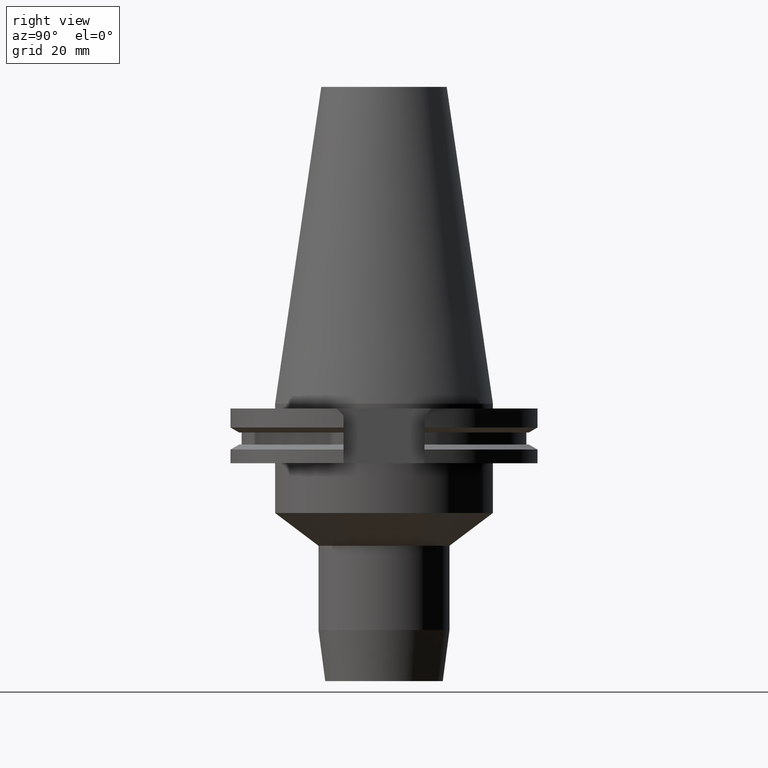
[diagram: clean part render]
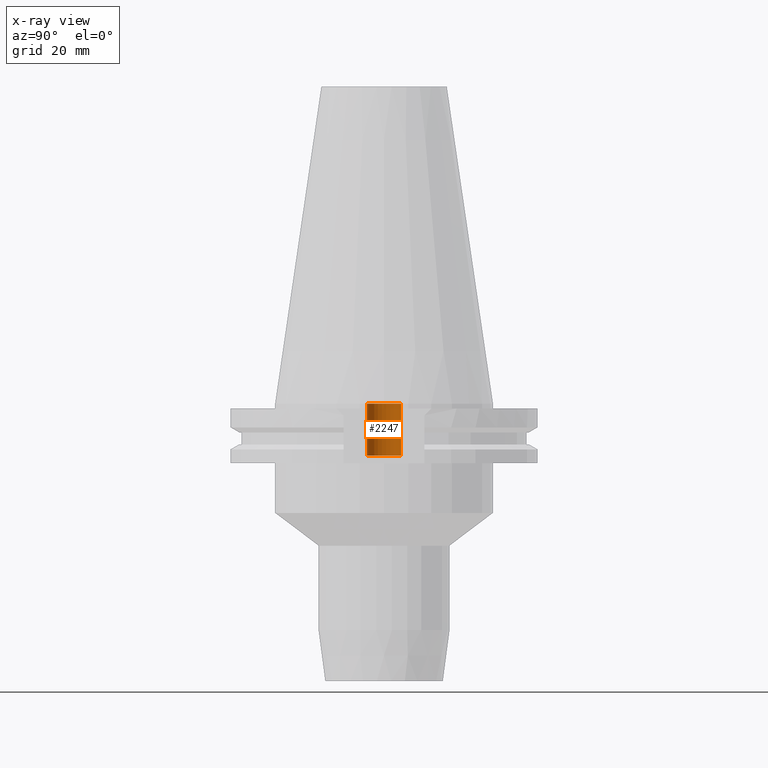
[diagram: x-ray — body ghosted, one internal face saturated and labeled with its STEP entity id]
A machine part, right view, then the same camera in x-ray: the body is ghosted and one INTERNAL B-rep face — a face not visible from any outside direction — is saturated and labeled: STEP entity #2247.
In plain terms, the highlighted cylindrical surface (edge-blend (fillet) strip) has radius 5.5 mm, axis along (0, 0, 1).
Its self-contained STEP definition (entity closure, byte-faithful):
#1060=CARTESIAN_POINT('',(0.E0,0.E0,-1.67E1));
#1061=DIRECTION('',(0.E0,0.E0,-1.E0));
#1062=DIRECTION('',(0.E0,-1.E0,0.E0));
#1063=AXIS2_PLACEMENT_3D('',#1060,#1061,#1062);
#1076=DIRECTION('',(0.E0,0.E0,1.E0));
#1077=VECTOR('',#1076,1.67E1);
#1078=CARTESIAN_POINT('',(0.E0,-5.5E0,-1.67E1));
#1079=LINE('',#1078,#1077);
#1083=CARTESIAN_POINT('',(0.E0,0.E0,1.421085471520E-13));
#1084=DIRECTION('',(0.E0,0.E0,-1.E0));
#1085=DIRECTION('',(0.E0,-1.E0,0.E0));
#1086=AXIS2_PLACEMENT_3D('',#1083,#1084,#1085);
#1091=DIRECTION('',(0.E0,0.E0,1.E0));
#1092=VECTOR('',#1091,1.67E1);
#1093=CARTESIAN_POINT('',(0.E0,5.5E0,-1.67E1));
#1094=LINE('',#1093,#1092);
#1308=CARTESIAN_POINT('',(0.E0,-5.5E0,-1.67E1));
#1309=CARTESIAN_POINT('',(0.E0,5.5E0,-1.67E1));
#1310=VERTEX_POINT('',#1308);
#1311=VERTEX_POINT('',#1309);
#1312=CARTESIAN_POINT('',(0.E0,5.5E0,1.278976924368E-13));
#1313=VERTEX_POINT('',#1312);
#1314=CARTESIAN_POINT('',(0.E0,-5.5E0,1.278976924368E-13));
#1315=VERTEX_POINT('',#1314);
#2233=CARTESIAN_POINT('',(0.E0,0.E0,-9.8425E1));
#2234=DIRECTION('',(0.E0,0.E0,1.E0));
#2235=DIRECTION('',(0.E0,1.E0,0.E0));
#2236=AXIS2_PLACEMENT_3D('',#2233,#2234,#2235);
#2237=CYLINDRICAL_SURFACE('',#2236,5.5E0);
#2239=ORIENTED_EDGE('',*,*,#2238,.F.);
#2240=ORIENTED_EDGE('',*,*,#2226,.F.);
#2242=ORIENTED_EDGE('',*,*,#2241,.T.);
#2244=ORIENTED_EDGE('',*,*,#2243,.T.);
#2245=EDGE_LOOP('',(#2239,#2240,#2242,#2244));
#2246=FACE_OUTER_BOUND('',#2245,.F.);
#1064=CIRCLE('',#1063,5.5E0);
#1087=CIRCLE('',#1086,5.5E0);
#2226=EDGE_CURVE('',#1310,#1311,#1064,.T.);
#2238=EDGE_CURVE('',#1311,#1313,#1094,.T.);
#2241=EDGE_CURVE('',#1310,#1315,#1079,.T.);
#2243=EDGE_CURVE('',#1315,#1313,#1087,.T.);
#2247=ADVANCED_FACE('',(#2246),#2237,.F.);